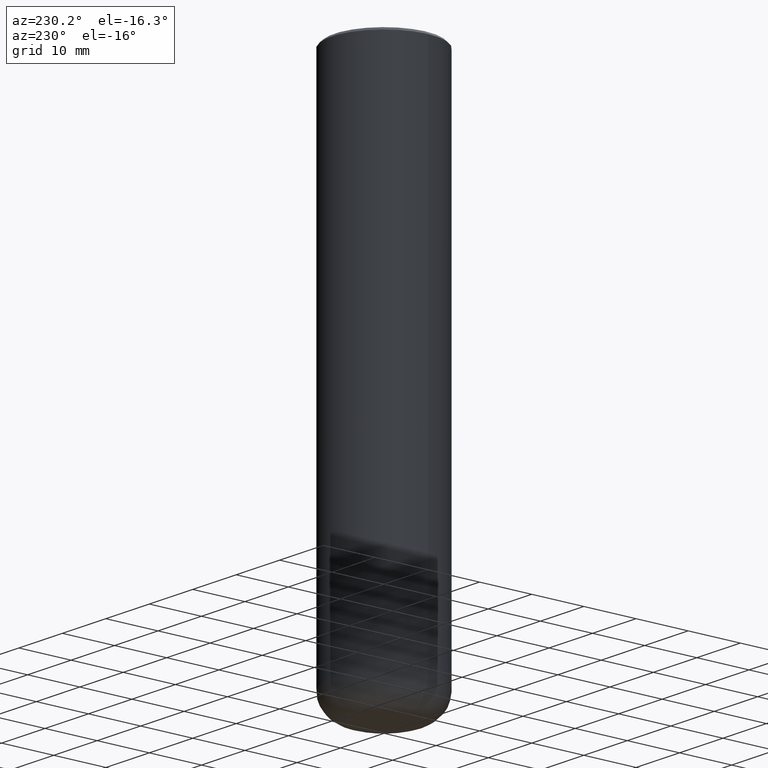
[diagram: clean part render]
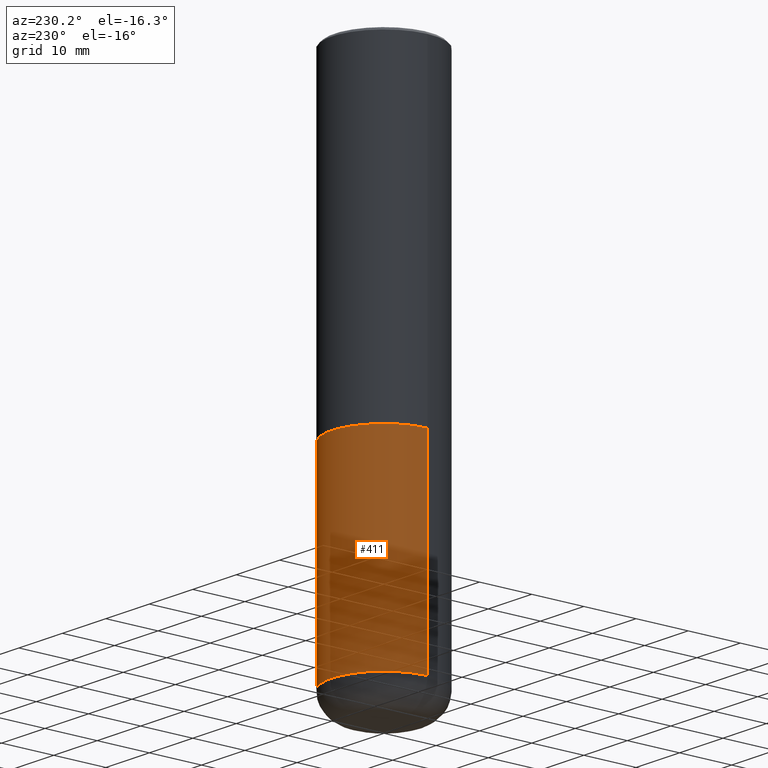
[diagram: same view with one face highlighted and labeled with its STEP entity id]
A machine part, auxiliary view. The second image highlights one B-rep face of the part: STEP entity #411.
In plain terms, the highlighted cylindrical surface (partial cylindrical patch) has radius 10 mm, axis along (-0, 0, 1).
Its self-contained STEP definition (entity closure, byte-faithful):
#2 = ORIENTED_EDGE ( 'NONE', *, *, #145, .T. ) ;
#14 = EDGE_LOOP ( 'NONE', ( #221, #2, #262, #351 ) ) ;
#19 = CARTESIAN_POINT ( 'NONE',  ( -0.3937000000000000499, -8.199362874132856734E-15, -2.401600000000000179 ) ) ;
#24 = DIRECTION ( 'NONE',  ( -2.445468806185136877E-29, 3.491481338843145188E-15, 1.000000000000000000 ) ) ;
#25 = VECTOR ( 'NONE', #24, 39.37007874015748143 ) ;
#38 = EDGE_CURVE ( 'NONE', #67, #43, #109, .T. ) ;
#42 = CARTESIAN_POINT ( 'NONE',  ( 0.000000000000000000, 0.000000000000000000, 0.000000000000000000 ) ) ;
#43 = VERTEX_POINT ( 'NONE', #245 ) ;
#46 = VERTEX_POINT ( 'NONE', #19 ) ;
#54 = DIRECTION ( 'NONE',  ( -2.445468806185136597E-29, 3.491481338843145583E-15, 1.000000000000000000 ) ) ;
#58 = CARTESIAN_POINT ( 'NONE',  ( 9.531459218987190195E-29, -1.360839766627504578E-14, -3.897600000000000620 ) ) ;
#62 = DIRECTION ( 'NONE',  ( 1.000000000000000000, -6.982962677686265133E-15, 0.000000000000000000 ) ) ;
#67 = VERTEX_POINT ( 'NONE', #403 ) ;
#71 = DIRECTION ( 'NONE',  ( -2.445468806185136877E-29, 3.491481338843145188E-15, 1.000000000000000000 ) ) ;
#77 = AXIS2_PLACEMENT_3D ( 'NONE', #42, #185, #129 ) ;
#92 = VECTOR ( 'NONE', #71, 39.37007874015748143 ) ;
#105 = CYLINDRICAL_SURFACE ( 'NONE', #77, 0.3937000000000000499 ) ;
#109 = LINE ( 'NONE', #160, #25 ) ;
#112 = DIRECTION ( 'NONE',  ( -2.445468806185136597E-29, 3.491481338843145583E-15, 1.000000000000000000 ) ) ;
#122 = AXIS2_PLACEMENT_3D ( 'NONE', #387, #112, #62 ) ;
#123 = CARTESIAN_POINT ( 'NONE',  ( -0.3936999999999999389, -1.081099091558753178E-14, -3.897600000000000620 ) ) ;
#124 = FACE_OUTER_BOUND ( 'NONE', #14, .T. ) ;
#127 = AXIS2_PLACEMENT_3D ( 'NONE', #58, #54, #213 ) ;
#129 = DIRECTION ( 'NONE',  ( 1.000000000000000000, -6.982962677686265922E-15, 4.876176775795935793E-29 ) ) ;
#145 = EDGE_CURVE ( 'NONE', #196, #46, #175, .T. ) ;
#160 = CARTESIAN_POINT ( 'NONE',  ( 0.3937000000000000499, -2.749192406205083217E-15, 1.919750796630860172E-29 ) ) ;
#175 = LINE ( 'NONE', #356, #92 ) ;
#185 = DIRECTION ( 'NONE',  ( -2.445468806185136597E-29, 3.491481338843145583E-15, 1.000000000000000000 ) ) ;
#192 = EDGE_CURVE ( 'NONE', #67, #196, #225, .T. ) ;
#196 = VERTEX_POINT ( 'NONE', #123 ) ;
#213 = DIRECTION ( 'NONE',  ( 1.000000000000000000, -6.982962677686267499E-15, 0.000000000000000000 ) ) ;
#221 = ORIENTED_EDGE ( 'NONE', *, *, #192, .T. ) ;
#225 = CIRCLE ( 'NONE', #127, 0.3937000000000000499 ) ;
#240 = EDGE_CURVE ( 'NONE', #43, #46, #261, .T. ) ;
#245 = CARTESIAN_POINT ( 'NONE',  ( 0.3937000000000000499, -1.113433398957078206E-14, -2.401600000000000179 ) ) ;
#261 = CIRCLE ( 'NONE', #122, 0.3937000000000000499 ) ;
#262 = ORIENTED_EDGE ( 'NONE', *, *, #240, .F. ) ;
#351 = ORIENTED_EDGE ( 'NONE', *, *, #38, .F. ) ;
#356 = CARTESIAN_POINT ( 'NONE',  ( -0.3937000000000000499, 2.797406750687514786E-15, -1.936584745033356735E-29 ) ) ;
#387 = CARTESIAN_POINT ( 'NONE',  ( 5.873037884934224349E-29, -8.385141583365698841E-15, -2.401600000000000179 ) ) ;
#403 = CARTESIAN_POINT ( 'NONE',  ( 0.3936999999999999389, -1.635759007248013057E-14, -3.897600000000000620 ) ) ;
#411 = ADVANCED_FACE ( 'NONE', ( #124 ), #105, .T. ) ;